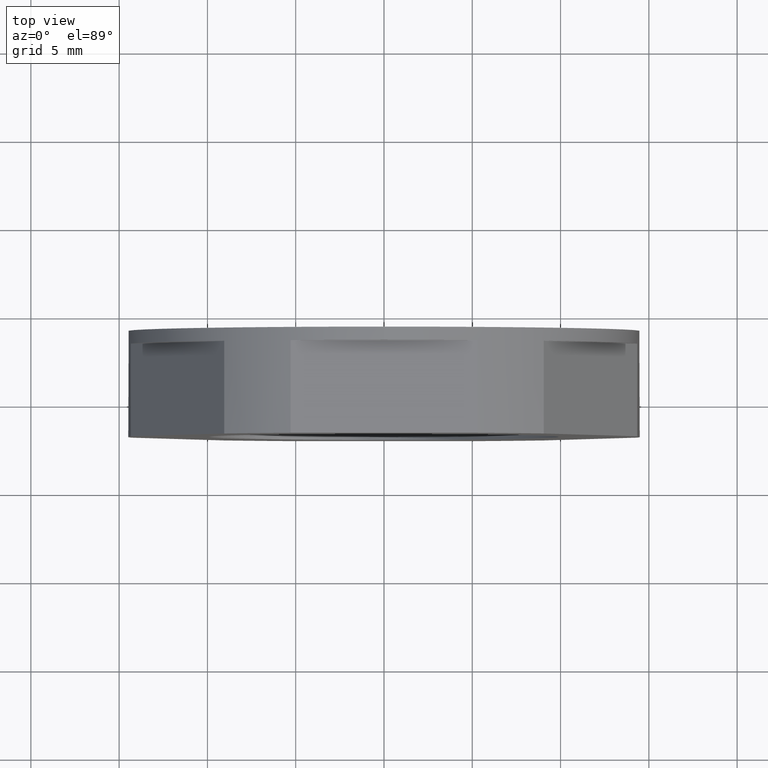
[diagram: clean part render]
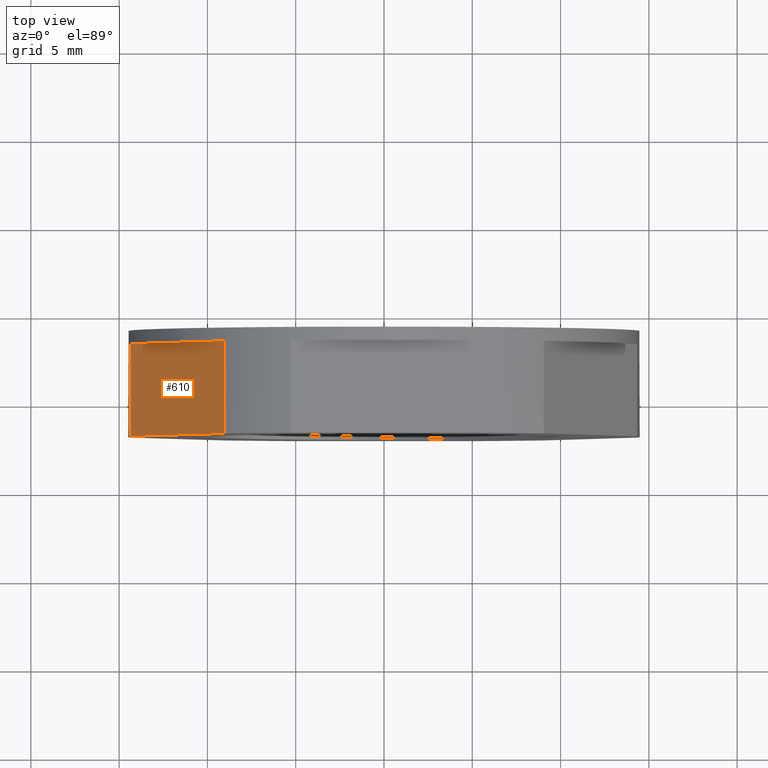
[diagram: same view with one face highlighted and labeled with its STEP entity id]
A machine part, top view. The second image highlights one B-rep face of the part: STEP entity #610.
In plain terms, the highlighted planar face has unit normal (0.866, 0, -0.5).
Its self-contained STEP definition (entity closure, byte-faithful):
#212 = CARTESIAN_POINT ( 'NONE',  ( -9.045591640025342900, -16.94999999999999900, 11.33257569495583400 ) ) ;
#223 = CARTESIAN_POINT ( 'NONE',  ( -14.33709426215451200, -11.70000000000000300, 2.167424305044172600 ) ) ;
#250 = CARTESIAN_POINT ( 'NONE',  ( -9.045591640025344700, -11.70000000000000300, 11.33257569495583200 ) ) ;
#257 = CARTESIAN_POINT ( 'NONE',  ( -14.33709426215451200, -16.94999999999999900, 2.167424305044173500 ) ) ;
#573 = EDGE_CURVE ( 'NONE', #758, #759, #1152, .T. ) ;
#593 = EDGE_CURVE ( 'NONE', #759, #754, #1556, .T. ) ;
#610 = ADVANCED_FACE ( 'NONE', ( #1699 ), #1705, .F. ) ;
#622 = EDGE_CURVE ( 'NONE', #746, #758, #1867, .T. ) ;
#623 = EDGE_CURVE ( 'NONE', #754, #746, #1858, .T. ) ;
#693 = ORIENTED_EDGE ( 'NONE', *, *, #573, .F. ) ;
#696 = ORIENTED_EDGE ( 'NONE', *, *, #622, .F. ) ;
#703 = ORIENTED_EDGE ( 'NONE', *, *, #593, .F. ) ;
#719 = ORIENTED_EDGE ( 'NONE', *, *, #623, .F. ) ;
#724 = EDGE_LOOP ( 'NONE', ( #696, #719, #703, #693 ) ) ;
#746 = VERTEX_POINT ( 'NONE', #257 ) ;
#754 = VERTEX_POINT ( 'NONE', #212 ) ;
#758 = VERTEX_POINT ( 'NONE', #223 ) ;
#759 = VERTEX_POINT ( 'NONE', #250 ) ;
#1115 = CARTESIAN_POINT ( 'NONE',  ( -8.851558628293563700, -11.70000000000000300, 11.66865072962088200 ) ) ;
#1152 = LINE ( 'NONE', #1115, #1483 ) ;
#1156 = DIRECTION ( 'NONE',  ( 0.4999999999999998900, -0.0000000000000000000, 0.8660254037844387100 ) ) ;
#1456 = VECTOR ( 'NONE', #1562, 1000.000000000000000 ) ;
#1483 = VECTOR ( 'NONE', #1156, 1000.000000000000000 ) ;
#1502 = VECTOR ( 'NONE', #1872, 1000.000000000000000 ) ;
#1516 = AXIS2_PLACEMENT_3D ( 'NONE', #1698, #1702, #1706 ) ;
#1539 = VECTOR ( 'NONE', #1843, 1000.000000000000000 ) ;
#1556 = LINE ( 'NONE', #1586, #1456 ) ;
#1562 = DIRECTION ( 'NONE',  ( -0.0000000000000000000, -1.000000000000000000, -0.0000000000000000000 ) ) ;
#1586 = CARTESIAN_POINT ( 'NONE',  ( -9.045591640025342900, -5.949999999999998400, 11.33257569495583400 ) ) ;
#1698 = CARTESIAN_POINT ( 'NONE',  ( -8.851558628293563700, -15.94999999999999900, 11.66865072962088200 ) ) ;
#1699 = FACE_OUTER_BOUND ( 'NONE', #724, .T. ) ;
#1702 = DIRECTION ( 'NONE',  ( 0.8660254037844387100, 0.0000000000000000000, -0.4999999999999998900 ) ) ;
#1705 = PLANE ( 'NONE',  #1516 ) ;
#1706 = DIRECTION ( 'NONE',  ( -0.4999999999999998900, 0.0000000000000000000, -0.8660254037844387100 ) ) ;
#1843 = DIRECTION ( 'NONE',  ( 0.0000000000000000000, 1.000000000000000000, 0.0000000000000000000 ) ) ;
#1851 = CARTESIAN_POINT ( 'NONE',  ( -8.851558628293563700, -16.94999999999999900, 11.66865072962088200 ) ) ;
#1854 = CARTESIAN_POINT ( 'NONE',  ( -14.33709426215451200, -5.949999999999998400, 2.167424305044173500 ) ) ;
#1858 = LINE ( 'NONE', #1851, #1502 ) ;
#1867 = LINE ( 'NONE', #1854, #1539 ) ;
#1872 = DIRECTION ( 'NONE',  ( -0.4999999999999998900, 0.0000000000000000000, -0.8660254037844387100 ) ) ;